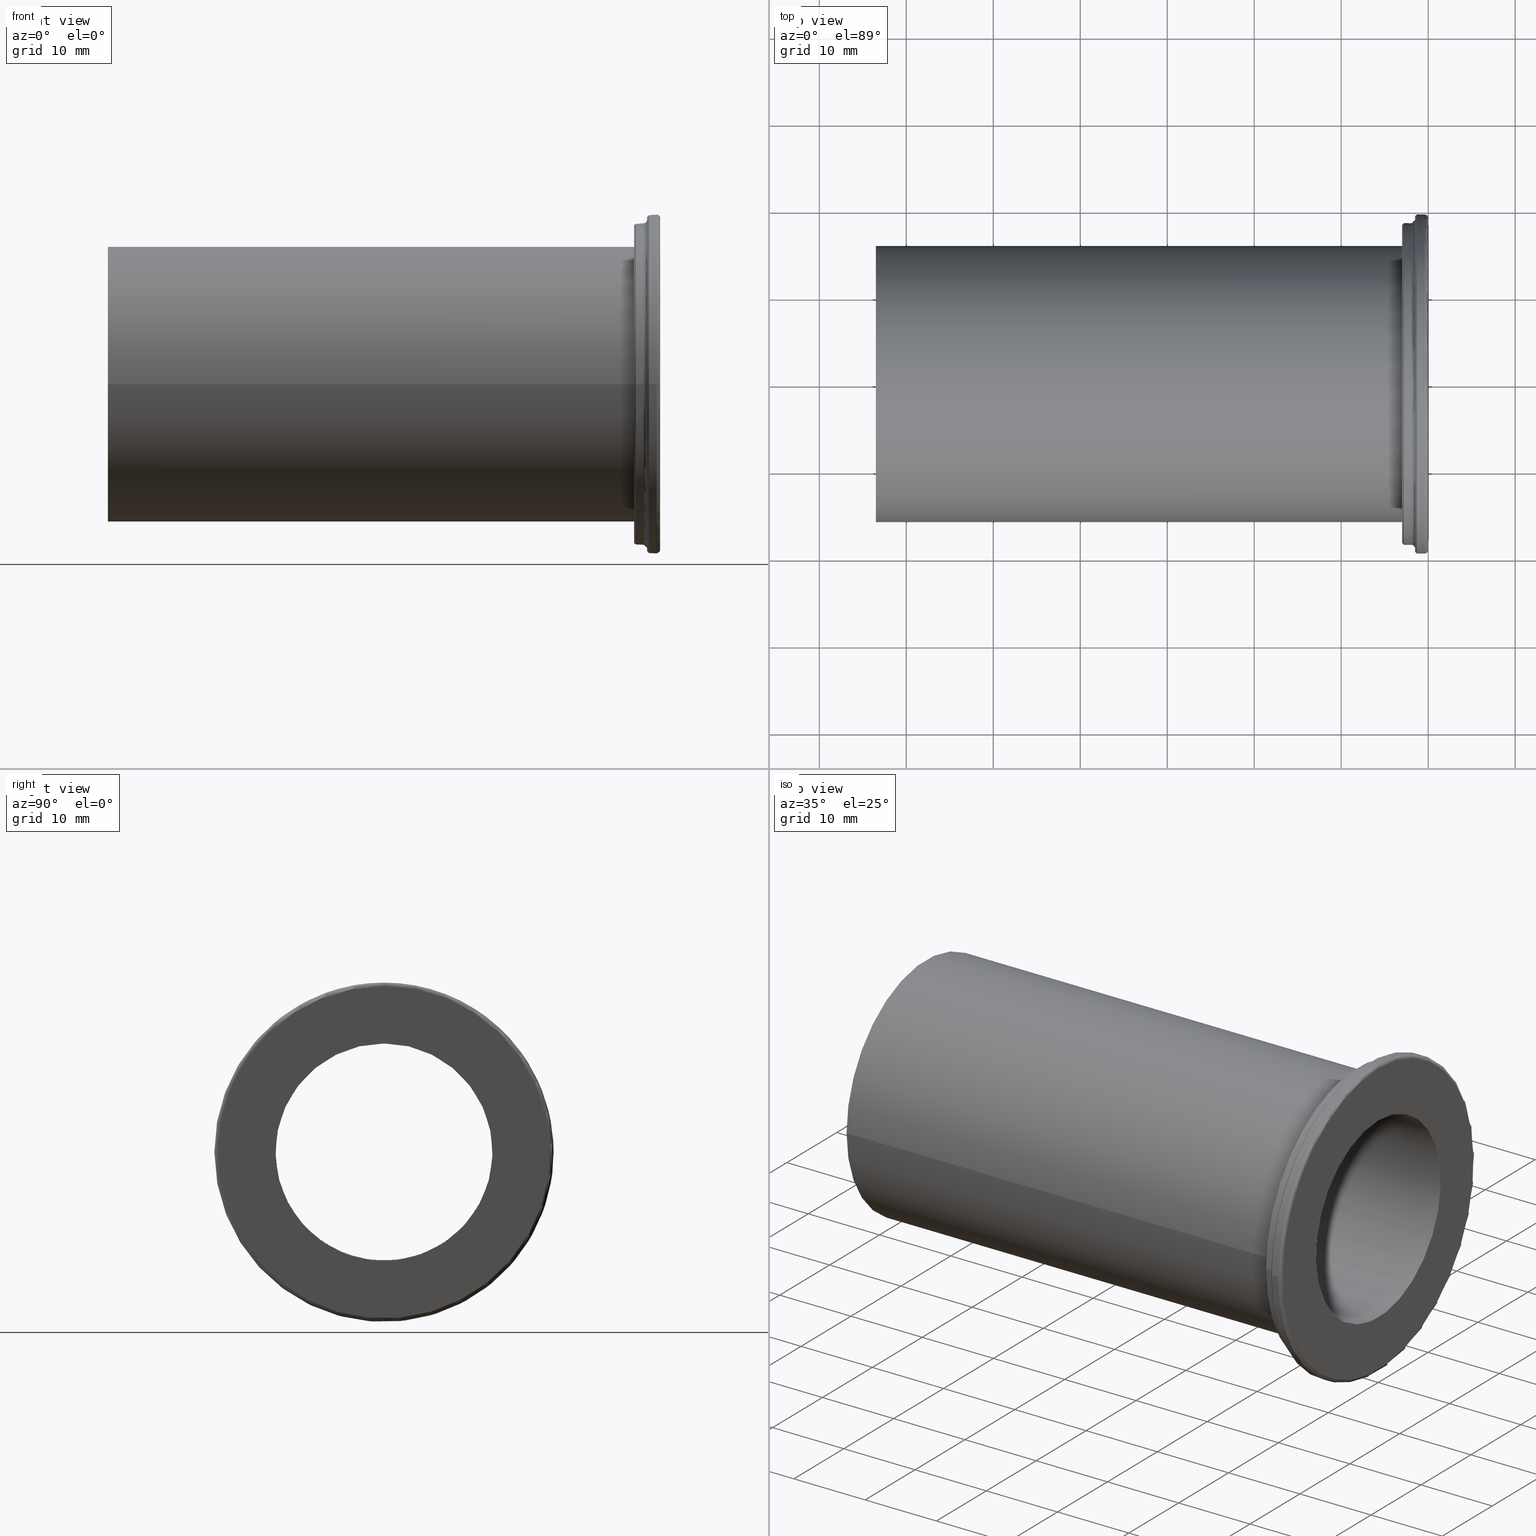
[diagram: canonical four-view strip — front | top / right | iso, engineering-drawing reading convention]
A machine part, canonical four-view strip (front | top / right | iso — engineering-drawing reading convention). The complete STEP part file that produces these views, byte-faithful:
ISO-10303-21;
HEADER;
/* Generated by software containing ST-Developer
 * from STEP Tools, Inc. (www.steptools.com) 
 */

FILE_DESCRIPTION(
/* description */ ('',
'CAx-IF Rec.Pracs.---Representation and Presentation of Product Manufa
cturing Information (PMI)---4.0---2014-10-13'),
/* implementation_level */ '2;1');

FILE_NAME(
/* name */ '103225.stp',
/* time_stamp */ '2025-05-12T15:31:30+09:00',
/* author */ ('eos'),
/* organization */ (''),
/* preprocessor_version */ 'ST-DEVELOPER v20',
/* originating_system */ 'Autodesk Inventor 2025',
/* authorisation */ '');

FILE_SCHEMA (('AP242_MANAGED_MODEL_BASED_3D_ENGINEERING_MIM_LF { 1 0 10303 442 1 1 4 }'));
ENDSEC;

DATA;
#10=CONSTRUCTIVE_GEOMETRY_REPRESENTATION_RELATIONSHIP('CGRR','None',#587,
#11);
#11=CONSTRUCTIVE_GEOMETRY_REPRESENTATION('Supplemental geometry',(#45,#46,
#47),#579);
#12=MECHANICAL_DESIGN_AND_DRAUGHTING_RELATIONSHIP('\X2\B4F1AC01D22CC601\X0\',
'',#27,#28);
#13=MECHANICAL_DESIGN_AND_DRAUGHTING_RELATIONSHIP('\X2\C815BA74\X0\','',
#29,#28);
#14=MECHANICAL_DESIGN_AND_DRAUGHTING_RELATIONSHIP('\X2\D3C9BA74\X0\','',
#30,#28);
#15=MECHANICAL_DESIGN_AND_DRAUGHTING_RELATIONSHIP('\X2\C6B0CE21BA74\X0\',
'',#31,#28);
#16=MAPPED_ITEM('',#21,#357);
#17=MAPPED_ITEM('',#22,#358);
#18=MAPPED_ITEM('',#23,#359);
#19=MAPPED_ITEM('',#24,#360);
#20=MAPPED_ITEM('',#25,#361);
#21=REPRESENTATION_MAP(#357,#26);
#22=REPRESENTATION_MAP(#358,#587);
#23=REPRESENTATION_MAP(#359,#26);
#24=REPRESENTATION_MAP(#360,#26);
#25=REPRESENTATION_MAP(#361,#26);
#26=ADVANCED_BREP_SHAPE_REPRESENTATION('\X2\B4F1AC01D22CC601\X0\',(#79),
#579);
#27=DRAUGHTING_MODEL('\X2\B4F1AC01D22CC601\X0\',(#16,#33),#579);
#28=DRAUGHTING_MODEL('',(#17,#358),#579);
#29=DRAUGHTING_MODEL('\X2\C815BA74\X0\',(#18,#34),#579);
#30=DRAUGHTING_MODEL('\X2\D3C9BA74\X0\',(#19,#35),#579);
#31=DRAUGHTING_MODEL('\X2\C6B0CE21BA74\X0\',(#20,#36),#579);
#32=MECHANICAL_DESIGN_GEOMETRIC_PRESENTATION_REPRESENTATION('',(#58,#59,
#60,#61,#62,#63,#64,#65,#66,#67,#68,#69,#70,#71,#72,#73,#74,#75,#76,#77),
#580);
#33=CAMERA_MODEL_D3('\X2\B4F1AC01D22CC601\X0\',#349,#37);
#34=CAMERA_MODEL_D3('\X2\C815BA74\X0\',#351,#38);
#35=CAMERA_MODEL_D3('\X2\D3C9BA74\X0\',#353,#39);
#36=CAMERA_MODEL_D3('\X2\C6B0CE21BA74\X0\',#355,#40);
#37=VIEW_VOLUME(.PARALLEL.,#562,16.9875424688562,0.,.F.,0.,.F.,.F.,#41);
#38=VIEW_VOLUME(.PARALLEL.,#565,117.693146607172,0.,.F.,0.,.F.,.F.,#42);
#39=VIEW_VOLUME(.PARALLEL.,#568,117.693146607172,0.,.F.,0.,.F.,.F.,#43);
#40=VIEW_VOLUME(.PARALLEL.,#571,117.693146607172,0.,.F.,0.,.F.,.F.,#44);
#41=PLANAR_BOX('view window',27.8110236220472,20.,#350);
#42=PLANAR_BOX('view window',27.8110236220472,20.,#352);
#43=PLANAR_BOX('view window',27.8110236220472,20.,#354);
#44=PLANAR_BOX('view window',27.8110236220472,20.,#356);
#45=GEOMETRIC_CURVE_SET('\X2\C2A4CF00CE58\X0\1',(#49,#50,#51,#52,#53,#54,
#55,#56,#57,#553));
#46=GEOMETRIC_CURVE_SET('\X2\C2A4CF00CE58\X0\5',(#162,#555,#556));
#47=GEOMETRIC_CURVE_SET('\X2\C2A4CF00CE58\X0\7',(#163,#558,#559));
#48=INVISIBILITY((#59,#60,#61,#62,#63,#64,#65,#66,#67,#68,#69,#70,#71,#72,
#73,#74,#75,#76,#77));
#49=POLYLINE('',(#535,#536));
#50=POLYLINE('',(#537,#538));
#51=POLYLINE('',(#539,#540));
#52=POLYLINE('',(#541,#542));
#53=POLYLINE('',(#543,#544));
#54=POLYLINE('',(#545,#546));
#55=POLYLINE('',(#547,#548));
#56=POLYLINE('',(#549,#550));
#57=POLYLINE('',(#551,#552));
#58=STYLED_ITEM('',(#596),#79);
#59=STYLED_ITEM('',(#597),#49);
#60=STYLED_ITEM('',(#597),#50);
#61=STYLED_ITEM('',(#598),#51);
#62=STYLED_ITEM('',(#597),#52);
#63=STYLED_ITEM('',(#597),#53);
#64=STYLED_ITEM('',(#597),#54);
#65=STYLED_ITEM('',(#597),#55);
#66=STYLED_ITEM('',(#597),#56);
#67=STYLED_ITEM('',(#597),#57);
#68=STYLED_ITEM('',(#599),#553);
#69=STYLED_ITEM('',(#598),#162);
#70=STYLED_ITEM('',(#600),#555);
#71=STYLED_ITEM('',(#601),#556);
#72=STYLED_ITEM('',(#598),#163);
#73=STYLED_ITEM('',(#602),#558);
#74=STYLED_ITEM('',(#603),#559);
#75=STYLED_ITEM('',(#604),#45);
#76=STYLED_ITEM('',(#605),#46);
#77=STYLED_ITEM('',(#606),#47);
#78=STYLED_ITEM('',(#607),#17);
#79=MANIFOLD_SOLID_BREP('\X2\C194B9ACB4DC\X0\1',#289);
#80=TOROIDAL_SURFACE('',#338,19.1,0.4);
#81=TOROIDAL_SURFACE('',#342,18.9,0.4);
#82=FACE_BOUND('',#113,.T.);
#83=FACE_BOUND('',#117,.T.);
#84=FACE_BOUND('',#120,.T.);
#85=FACE_BOUND('',#123,.T.);
#86=PLANE('',#327);
#87=PLANE('',#336);
#88=PLANE('',#341);
#89=PLANE('',#344);
#90=CONICAL_SURFACE('',#316,6.5,0.785398163397448);
#91=CONICAL_SURFACE('',#320,19.4,0.785398163397448);
#92=CONICAL_SURFACE('',#329,18.4,0.785398163397448);
#93=FACE_OUTER_BOUND('',#107,.T.);
#94=FACE_OUTER_BOUND('',#108,.T.);
#95=FACE_OUTER_BOUND('',#109,.T.);
#96=FACE_OUTER_BOUND('',#110,.T.);
#97=FACE_OUTER_BOUND('',#111,.T.);
#98=FACE_OUTER_BOUND('',#112,.T.);
#99=FACE_OUTER_BOUND('',#114,.T.);
#100=FACE_OUTER_BOUND('',#115,.T.);
#101=FACE_OUTER_BOUND('',#116,.T.);
#102=FACE_OUTER_BOUND('',#118,.T.);
#103=FACE_OUTER_BOUND('',#119,.T.);
#104=FACE_OUTER_BOUND('',#121,.T.);
#105=FACE_OUTER_BOUND('',#122,.T.);
#106=FACE_OUTER_BOUND('',#124,.T.);
#107=EDGE_LOOP('',(#212,#213,#214,#215,#216));
#108=EDGE_LOOP('',(#217,#218,#219,#220,#221));
#109=EDGE_LOOP('',(#222,#223,#224,#225));
#110=EDGE_LOOP('',(#226,#227,#228,#229,#230));
#111=EDGE_LOOP('',(#231,#232,#233,#234,#235,#236));
#112=EDGE_LOOP('',(#237));
#113=EDGE_LOOP('',(#238));
#114=EDGE_LOOP('',(#239,#240,#241,#242,#243));
#115=EDGE_LOOP('',(#244,#245,#246,#247,#248,#249));
#116=EDGE_LOOP('',(#250));
#117=EDGE_LOOP('',(#251));
#118=EDGE_LOOP('',(#252,#253,#254,#255,#256));
#119=EDGE_LOOP('',(#257));
#120=EDGE_LOOP('',(#258));
#121=EDGE_LOOP('',(#259,#260,#261,#262,#263));
#122=EDGE_LOOP('',(#264));
#123=EDGE_LOOP('',(#265));
#124=EDGE_LOOP('',(#266,#267,#268,#269));
#125=LINE('',#477,#133);
#126=LINE('',#484,#134);
#127=LINE('',#488,#135);
#128=LINE('',#495,#136);
#129=LINE('',#501,#137);
#130=LINE('',#512,#138);
#131=LINE('',#518,#139);
#132=LINE('',#534,#140);
#133=VECTOR('',#368,12.5);
#134=VECTOR('',#377,6.5);
#135=VECTOR('',#382,13.);
#136=VECTOR('',#389,19.4);
#137=VECTOR('',#396,19.5);
#138=VECTOR('',#409,18.4);
#139=VECTOR('',#416,18.5);
#140=VECTOR('',#441,15.875);
#141=CIRCLE('',#313,12.5);
#142=CIRCLE('',#314,12.5);
#143=CIRCLE('',#315,12.5);
#144=CIRCLE('',#317,13.);
#145=CIRCLE('',#319,13.);
#146=CIRCLE('',#321,19.5);
#147=CIRCLE('',#322,19.5);
#148=CIRCLE('',#323,19.3);
#149=CIRCLE('',#325,19.5);
#150=CIRCLE('',#326,19.5);
#151=CIRCLE('',#328,18.9);
#152=CIRCLE('',#330,18.5);
#153=CIRCLE('',#331,18.5);
#154=CIRCLE('',#332,18.3);
#155=CIRCLE('',#334,18.5);
#156=CIRCLE('',#335,18.5);
#157=CIRCLE('',#337,15.875);
#158=CIRCLE('',#339,19.1);
#159=CIRCLE('',#340,0.4);
#160=CIRCLE('',#343,0.4);
#161=CIRCLE('',#345,15.875);
#162=CIRCLE('',#347,15.875);
#163=CIRCLE('',#348,19.1);
#164=VERTEX_POINT('',#474);
#165=VERTEX_POINT('',#476);
#166=VERTEX_POINT('',#478);
#167=VERTEX_POINT('',#482);
#168=VERTEX_POINT('',#486);
#169=VERTEX_POINT('',#490);
#170=VERTEX_POINT('',#491);
#171=VERTEX_POINT('',#494);
#172=VERTEX_POINT('',#498);
#173=VERTEX_POINT('',#499);
#174=VERTEX_POINT('',#504);
#175=VERTEX_POINT('',#507);
#176=VERTEX_POINT('',#508);
#177=VERTEX_POINT('',#511);
#178=VERTEX_POINT('',#515);
#179=VERTEX_POINT('',#516);
#180=VERTEX_POINT('',#521);
#181=VERTEX_POINT('',#524);
#182=VERTEX_POINT('',#531);
#183=EDGE_CURVE('',#164,#164,#141,.T.);
#184=EDGE_CURVE('',#164,#165,#125,.T.);
#185=EDGE_CURVE('',#166,#165,#142,.T.);
#186=EDGE_CURVE('',#165,#166,#143,.T.);
#187=EDGE_CURVE('',#167,#167,#144,.T.);
#188=EDGE_CURVE('',#167,#166,#126,.T.);
#189=EDGE_CURVE('',#168,#168,#145,.T.);
#190=EDGE_CURVE('',#168,#167,#127,.T.);
#191=EDGE_CURVE('',#169,#170,#146,.T.);
#192=EDGE_CURVE('',#170,#169,#147,.T.);
#193=EDGE_CURVE('',#169,#171,#128,.T.);
#194=EDGE_CURVE('',#171,#171,#148,.T.);
#195=EDGE_CURVE('',#172,#173,#149,.T.);
#196=EDGE_CURVE('',#172,#170,#129,.T.);
#197=EDGE_CURVE('',#173,#172,#150,.T.);
#198=EDGE_CURVE('',#174,#174,#151,.T.);
#199=EDGE_CURVE('',#175,#176,#152,.T.);
#200=EDGE_CURVE('',#176,#175,#153,.T.);
#201=EDGE_CURVE('',#175,#177,#130,.T.);
#202=EDGE_CURVE('',#177,#177,#154,.T.);
#203=EDGE_CURVE('',#178,#179,#155,.T.);
#204=EDGE_CURVE('',#178,#176,#131,.T.);
#205=EDGE_CURVE('',#179,#178,#156,.T.);
#206=EDGE_CURVE('',#180,#180,#157,.T.);
#207=EDGE_CURVE('',#181,#181,#158,.T.);
#208=EDGE_CURVE('',#181,#173,#159,.T.);
#209=EDGE_CURVE('',#179,#174,#160,.T.);
#210=EDGE_CURVE('',#182,#182,#161,.T.);
#211=EDGE_CURVE('',#180,#182,#132,.T.);
#212=ORIENTED_EDGE('',*,*,#183,.F.);
#213=ORIENTED_EDGE('',*,*,#184,.T.);
#214=ORIENTED_EDGE('',*,*,#185,.F.);
#215=ORIENTED_EDGE('',*,*,#186,.F.);
#216=ORIENTED_EDGE('',*,*,#184,.F.);
#217=ORIENTED_EDGE('',*,*,#187,.T.);
#218=ORIENTED_EDGE('',*,*,#188,.T.);
#219=ORIENTED_EDGE('',*,*,#185,.T.);
#220=ORIENTED_EDGE('',*,*,#186,.T.);
#221=ORIENTED_EDGE('',*,*,#188,.F.);
#222=ORIENTED_EDGE('',*,*,#189,.F.);
#223=ORIENTED_EDGE('',*,*,#190,.T.);
#224=ORIENTED_EDGE('',*,*,#187,.F.);
#225=ORIENTED_EDGE('',*,*,#190,.F.);
#226=ORIENTED_EDGE('',*,*,#191,.T.);
#227=ORIENTED_EDGE('',*,*,#192,.T.);
#228=ORIENTED_EDGE('',*,*,#193,.T.);
#229=ORIENTED_EDGE('',*,*,#194,.T.);
#230=ORIENTED_EDGE('',*,*,#193,.F.);
#231=ORIENTED_EDGE('',*,*,#195,.F.);
#232=ORIENTED_EDGE('',*,*,#196,.T.);
#233=ORIENTED_EDGE('',*,*,#191,.F.);
#234=ORIENTED_EDGE('',*,*,#192,.F.);
#235=ORIENTED_EDGE('',*,*,#196,.F.);
#236=ORIENTED_EDGE('',*,*,#197,.F.);
#237=ORIENTED_EDGE('',*,*,#194,.F.);
#238=ORIENTED_EDGE('',*,*,#198,.F.);
#239=ORIENTED_EDGE('',*,*,#199,.T.);
#240=ORIENTED_EDGE('',*,*,#200,.T.);
#241=ORIENTED_EDGE('',*,*,#201,.T.);
#242=ORIENTED_EDGE('',*,*,#202,.T.);
#243=ORIENTED_EDGE('',*,*,#201,.F.);
#244=ORIENTED_EDGE('',*,*,#203,.F.);
#245=ORIENTED_EDGE('',*,*,#204,.T.);
#246=ORIENTED_EDGE('',*,*,#199,.F.);
#247=ORIENTED_EDGE('',*,*,#200,.F.);
#248=ORIENTED_EDGE('',*,*,#204,.F.);
#249=ORIENTED_EDGE('',*,*,#205,.F.);
#250=ORIENTED_EDGE('',*,*,#202,.F.);
#251=ORIENTED_EDGE('',*,*,#206,.T.);
#252=ORIENTED_EDGE('',*,*,#207,.T.);
#253=ORIENTED_EDGE('',*,*,#208,.T.);
#254=ORIENTED_EDGE('',*,*,#197,.T.);
#255=ORIENTED_EDGE('',*,*,#195,.T.);
#256=ORIENTED_EDGE('',*,*,#208,.F.);
#257=ORIENTED_EDGE('',*,*,#207,.F.);
#258=ORIENTED_EDGE('',*,*,#183,.T.);
#259=ORIENTED_EDGE('',*,*,#203,.T.);
#260=ORIENTED_EDGE('',*,*,#209,.T.);
#261=ORIENTED_EDGE('',*,*,#198,.T.);
#262=ORIENTED_EDGE('',*,*,#209,.F.);
#263=ORIENTED_EDGE('',*,*,#205,.T.);
#264=ORIENTED_EDGE('',*,*,#210,.F.);
#265=ORIENTED_EDGE('',*,*,#189,.T.);
#266=ORIENTED_EDGE('',*,*,#206,.F.);
#267=ORIENTED_EDGE('',*,*,#211,.T.);
#268=ORIENTED_EDGE('',*,*,#210,.T.);
#269=ORIENTED_EDGE('',*,*,#211,.F.);
#270=CYLINDRICAL_SURFACE('',#312,12.5);
#271=CYLINDRICAL_SURFACE('',#318,13.);
#272=CYLINDRICAL_SURFACE('',#324,19.5);
#273=CYLINDRICAL_SURFACE('',#333,18.5);
#274=CYLINDRICAL_SURFACE('',#346,15.875);
#275=ADVANCED_FACE('',(#93),#270,.F.);
#276=ADVANCED_FACE('',(#94),#90,.F.);
#277=ADVANCED_FACE('',(#95),#271,.F.);
#278=ADVANCED_FACE('',(#96),#91,.T.);
#279=ADVANCED_FACE('',(#97),#272,.T.);
#280=ADVANCED_FACE('',(#98,#82),#86,.T.);
#281=ADVANCED_FACE('',(#99),#92,.T.);
#282=ADVANCED_FACE('',(#100),#273,.T.);
#283=ADVANCED_FACE('',(#101,#83),#87,.T.);
#284=ADVANCED_FACE('',(#102),#80,.T.);
#285=ADVANCED_FACE('',(#103,#84),#88,.T.);
#286=ADVANCED_FACE('',(#104),#81,.F.);
#287=ADVANCED_FACE('',(#105,#85),#89,.T.);
#288=ADVANCED_FACE('',(#106),#274,.T.);
#289=CLOSED_SHELL('',(#275,#276,#277,#278,#279,#280,#281,#282,#283,#284,
#285,#286,#287,#288));
#290=DERIVED_UNIT_ELEMENT(#293,1.);
#291=DERIVED_UNIT_ELEMENT(#582,-3.);
#292=DIMENSIONAL_EXPONENTS(0.,1.,0.,0.,0.,0.,0.);
#293=(
CONVERSION_BASED_UNIT('gram',#295)
MASS_UNIT()
NAMED_UNIT(#292)
);
#294=(
MASS_UNIT()
NAMED_UNIT(*)
SI_UNIT(.KILO.,.GRAM.)
);
#295=MASS_MEASURE_WITH_UNIT(MASS_MEASURE(0.001),#294);
#296=DERIVED_UNIT((#290,#291));
#297=MEASURE_REPRESENTATION_ITEM('density measure',
POSITIVE_RATIO_MEASURE(7.85),#296);
#298=PROPERTY_DEFINITION_REPRESENTATION(#303,#300);
#299=PROPERTY_DEFINITION_REPRESENTATION(#304,#301);
#300=REPRESENTATION('material name',(#302),#579);
#301=REPRESENTATION('density',(#297),#579);
#302=DESCRIPTIVE_REPRESENTATION_ITEM('SUJ2','SUJ2');
#303=PROPERTY_DEFINITION('material property','material name',#589);
#304=PROPERTY_DEFINITION('material property','density of part',#589);
#305=DATE_TIME_ROLE('creation_date');
#306=APPLIED_DATE_AND_TIME_ASSIGNMENT(#307,#305,(#589));
#307=DATE_AND_TIME(#308,#309);
#308=CALENDAR_DATE(2020,6,7);
#309=LOCAL_TIME(0,0,0.,#310);
#310=COORDINATED_UNIVERSAL_TIME_OFFSET(0,0,.BEHIND.);
#311=AXIS2_PLACEMENT_3D('',#472,#362,#363);
#312=AXIS2_PLACEMENT_3D('',#473,#364,#365);
#313=AXIS2_PLACEMENT_3D('',#475,#366,#367);
#314=AXIS2_PLACEMENT_3D('',#479,#369,#370);
#315=AXIS2_PLACEMENT_3D('',#480,#371,#372);
#316=AXIS2_PLACEMENT_3D('',#481,#373,#374);
#317=AXIS2_PLACEMENT_3D('',#483,#375,#376);
#318=AXIS2_PLACEMENT_3D('',#485,#378,#379);
#319=AXIS2_PLACEMENT_3D('',#487,#380,#381);
#320=AXIS2_PLACEMENT_3D('',#489,#383,#384);
#321=AXIS2_PLACEMENT_3D('',#492,#385,#386);
#322=AXIS2_PLACEMENT_3D('',#493,#387,#388);
#323=AXIS2_PLACEMENT_3D('',#496,#390,#391);
#324=AXIS2_PLACEMENT_3D('',#497,#392,#393);
#325=AXIS2_PLACEMENT_3D('',#500,#394,#395);
#326=AXIS2_PLACEMENT_3D('',#502,#397,#398);
#327=AXIS2_PLACEMENT_3D('',#503,#399,#400);
#328=AXIS2_PLACEMENT_3D('',#505,#401,#402);
#329=AXIS2_PLACEMENT_3D('',#506,#403,#404);
#330=AXIS2_PLACEMENT_3D('',#509,#405,#406);
#331=AXIS2_PLACEMENT_3D('',#510,#407,#408);
#332=AXIS2_PLACEMENT_3D('',#513,#410,#411);
#333=AXIS2_PLACEMENT_3D('',#514,#412,#413);
#334=AXIS2_PLACEMENT_3D('',#517,#414,#415);
#335=AXIS2_PLACEMENT_3D('',#519,#417,#418);
#336=AXIS2_PLACEMENT_3D('',#520,#419,#420);
#337=AXIS2_PLACEMENT_3D('',#522,#421,#422);
#338=AXIS2_PLACEMENT_3D('',#523,#423,#424);
#339=AXIS2_PLACEMENT_3D('',#525,#425,#426);
#340=AXIS2_PLACEMENT_3D('',#526,#427,#428);
#341=AXIS2_PLACEMENT_3D('',#527,#429,#430);
#342=AXIS2_PLACEMENT_3D('',#528,#431,#432);
#343=AXIS2_PLACEMENT_3D('',#529,#433,#434);
#344=AXIS2_PLACEMENT_3D('',#530,#435,#436);
#345=AXIS2_PLACEMENT_3D('',#532,#437,#438);
#346=AXIS2_PLACEMENT_3D('',#533,#439,#440);
#347=AXIS2_PLACEMENT_3D('',#554,#442,#443);
#348=AXIS2_PLACEMENT_3D('',#557,#444,#445);
#349=AXIS2_PLACEMENT_3D('view reference',#560,#446,#447);
#350=AXIS2_PLACEMENT_3D('view window',#561,#448,#449);
#351=AXIS2_PLACEMENT_3D('view reference',#563,#450,#451);
#352=AXIS2_PLACEMENT_3D('view window',#564,#452,#453);
#353=AXIS2_PLACEMENT_3D('view reference',#566,#454,#455);
#354=AXIS2_PLACEMENT_3D('view window',#567,#456,#457);
#355=AXIS2_PLACEMENT_3D('view reference',#569,#458,#459);
#356=AXIS2_PLACEMENT_3D('view window',#570,#460,#461);
#357=AXIS2_PLACEMENT_3D('',#572,#462,#463);
#358=AXIS2_PLACEMENT_3D('',#573,#464,#465);
#359=AXIS2_PLACEMENT_3D('',#574,#466,#467);
#360=AXIS2_PLACEMENT_3D('',#575,#468,#469);
#361=AXIS2_PLACEMENT_3D('',#576,#470,#471);
#362=DIRECTION('axis',(0.,0.,1.));
#363=DIRECTION('refdir',(1.,0.,0.));
#364=DIRECTION('center_axis',(1.,0.,0.));
#365=DIRECTION('ref_axis',(0.,0.,-1.));
#366=DIRECTION('center_axis',(-1.,0.,0.));
#367=DIRECTION('ref_axis',(0.,0.,-1.));
#368=DIRECTION('',(-1.,0.,0.));
#369=DIRECTION('center_axis',(1.,0.,0.));
#370=DIRECTION('ref_axis',(0.,0.,-1.));
#371=DIRECTION('center_axis',(1.,0.,0.));
#372=DIRECTION('ref_axis',(0.,0.,-1.));
#373=DIRECTION('center_axis',(-1.,0.,0.));
#374=DIRECTION('ref_axis',(0.,0.,1.));
#375=DIRECTION('center_axis',(-1.,0.,0.));
#376=DIRECTION('ref_axis',(0.,0.,1.));
#377=DIRECTION('',(0.707106781186548,8.65956056235493E-17,0.707106781186547));
#378=DIRECTION('center_axis',(-1.,0.,0.));
#379=DIRECTION('ref_axis',(0.,0.,1.));
#380=DIRECTION('center_axis',(1.,0.,0.));
#381=DIRECTION('ref_axis',(0.,0.,1.));
#382=DIRECTION('',(1.,0.,0.));
#383=DIRECTION('center_axis',(1.,0.,0.));
#384=DIRECTION('ref_axis',(0.,-1.,0.));
#385=DIRECTION('center_axis',(-1.,0.,0.));
#386=DIRECTION('ref_axis',(0.,-1.,0.));
#387=DIRECTION('center_axis',(-1.,0.,0.));
#388=DIRECTION('ref_axis',(0.,-1.,0.));
#389=DIRECTION('',(-0.707106781186548,-0.707106781186548,-8.65956056235493E-17));
#390=DIRECTION('center_axis',(1.,0.,0.));
#391=DIRECTION('ref_axis',(0.,-1.,0.));
#392=DIRECTION('center_axis',(1.,0.,0.));
#393=DIRECTION('ref_axis',(0.,1.,0.));
#394=DIRECTION('center_axis',(1.,0.,0.));
#395=DIRECTION('ref_axis',(0.,-1.,1.83697019872103E-16));
#396=DIRECTION('',(-1.,0.,0.));
#397=DIRECTION('center_axis',(1.,0.,0.));
#398=DIRECTION('ref_axis',(0.,-1.,1.83697019872103E-16));
#399=DIRECTION('center_axis',(-1.,0.,0.));
#400=DIRECTION('ref_axis',(0.,0.,1.));
#401=DIRECTION('center_axis',(-1.,0.,0.));
#402=DIRECTION('ref_axis',(0.,-1.,1.83697019872103E-16));
#403=DIRECTION('center_axis',(1.,0.,0.));
#404=DIRECTION('ref_axis',(0.,-1.,0.));
#405=DIRECTION('center_axis',(-1.,0.,0.));
#406=DIRECTION('ref_axis',(0.,-1.,0.));
#407=DIRECTION('center_axis',(-1.,0.,0.));
#408=DIRECTION('ref_axis',(0.,-1.,0.));
#409=DIRECTION('',(-0.707106781186547,-0.707106781186547,-8.65956056235493E-17));
#410=DIRECTION('center_axis',(1.,0.,0.));
#411=DIRECTION('ref_axis',(0.,-1.,0.));
#412=DIRECTION('center_axis',(1.,0.,0.));
#413=DIRECTION('ref_axis',(0.,1.,0.));
#414=DIRECTION('center_axis',(1.,0.,0.));
#415=DIRECTION('ref_axis',(0.,-1.,1.83697019872103E-16));
#416=DIRECTION('',(-1.,0.,0.));
#417=DIRECTION('center_axis',(1.,0.,0.));
#418=DIRECTION('ref_axis',(0.,-1.,1.83697019872103E-16));
#419=DIRECTION('center_axis',(-1.,0.,0.));
#420=DIRECTION('ref_axis',(0.,0.,1.));
#421=DIRECTION('center_axis',(1.,0.,0.));
#422=DIRECTION('ref_axis',(0.,0.,-1.));
#423=DIRECTION('center_axis',(1.,0.,0.));
#424=DIRECTION('ref_axis',(0.,0.,-1.));
#425=DIRECTION('center_axis',(-1.,0.,0.));
#426=DIRECTION('ref_axis',(0.,-1.,1.83697019872103E-16));
#427=DIRECTION('center_axis',(0.,-1.,-1.22464679914735E-16));
#428=DIRECTION('ref_axis',(0.,-1.22464679914735E-16,1.));
#429=DIRECTION('center_axis',(1.,0.,0.));
#430=DIRECTION('ref_axis',(0.,0.,-1.));
#431=DIRECTION('center_axis',(1.,0.,0.));
#432=DIRECTION('ref_axis',(0.,0.,-1.));
#433=DIRECTION('center_axis',(0.,-1.,-1.22464679914735E-16));
#434=DIRECTION('ref_axis',(0.,-1.22464679914735E-16,1.));
#435=DIRECTION('center_axis',(-1.,0.,0.));
#436=DIRECTION('ref_axis',(0.,0.,1.));
#437=DIRECTION('center_axis',(1.,0.,0.));
#438=DIRECTION('ref_axis',(0.,0.,-1.));
#439=DIRECTION('center_axis',(1.,0.,0.));
#440=DIRECTION('ref_axis',(0.,1.,0.));
#441=DIRECTION('',(-1.,0.,0.));
#442=DIRECTION('center_axis',(-1.,0.,0.));
#443=DIRECTION('ref_axis',(0.,0.,1.));
#444=DIRECTION('center_axis',(1.,0.,0.));
#445=DIRECTION('ref_axis',(0.,0.,-1.));
#446=DIRECTION('center_axis',(-0.577350269189626,0.577350269189626,-0.577350269189626));
#447=DIRECTION('ref_axis',(-0.707106781186548,-0.707106781186548,0.));
#448=DIRECTION('center_axis',(0.,0.,1.));
#449=DIRECTION('ref_axis',(1.,0.,0.));
#450=DIRECTION('center_axis',(-2.22044604925031E-16,0.,-1.));
#451=DIRECTION('ref_axis',(-1.,0.,2.22044604925031E-16));
#452=DIRECTION('center_axis',(0.,0.,1.));
#453=DIRECTION('ref_axis',(1.,0.,0.));
#454=DIRECTION('center_axis',(0.,-1.,0.));
#455=DIRECTION('ref_axis',(-1.,0.,0.));
#456=DIRECTION('center_axis',(0.,0.,1.));
#457=DIRECTION('ref_axis',(1.,0.,0.));
#458=DIRECTION('center_axis',(-1.,0.,0.));
#459=DIRECTION('ref_axis',(0.,0.,1.));
#460=DIRECTION('center_axis',(0.,0.,1.));
#461=DIRECTION('ref_axis',(1.,0.,0.));
#462=DIRECTION('center_axis',(0.,0.,1.));
#463=DIRECTION('ref_axis',(1.,0.,0.));
#464=DIRECTION('center_axis',(0.,0.,1.));
#465=DIRECTION('ref_axis',(1.,0.,0.));
#466=DIRECTION('center_axis',(0.,0.,1.));
#467=DIRECTION('ref_axis',(1.,0.,0.));
#468=DIRECTION('center_axis',(0.,0.,1.));
#469=DIRECTION('ref_axis',(1.,0.,0.));
#470=DIRECTION('center_axis',(0.,0.,1.));
#471=DIRECTION('ref_axis',(1.,0.,0.));
#472=CARTESIAN_POINT('',(0.,0.,0.));
#473=CARTESIAN_POINT('Origin',(-84.1085608009078,0.,0.));
#474=CARTESIAN_POINT('',(0.,-1.53080849893419E-15,12.5));
#475=CARTESIAN_POINT('Origin',(0.,0.,0.));
#476=CARTESIAN_POINT('',(-47.,-1.53080849893419E-15,12.5));
#477=CARTESIAN_POINT('',(-84.1085608009078,-1.53080849893419E-15,12.5));
#478=CARTESIAN_POINT('',(-47.,-1.53080849893419E-15,-12.5));
#479=CARTESIAN_POINT('Origin',(-47.,0.,0.));
#480=CARTESIAN_POINT('Origin',(-47.,0.,0.));
#481=CARTESIAN_POINT('Origin',(-41.,0.,0.));
#482=CARTESIAN_POINT('',(-47.5,-1.59204083889156E-15,-13.));
#483=CARTESIAN_POINT('Origin',(-47.5,0.,0.));
#484=CARTESIAN_POINT('',(-41.,-7.9602041944578E-16,-6.5));
#485=CARTESIAN_POINT('Origin',(-55.5,0.,0.));
#486=CARTESIAN_POINT('',(-63.5,-1.59204083889156E-15,-13.));
#487=CARTESIAN_POINT('Origin',(-63.5,0.,0.));
#488=CARTESIAN_POINT('',(-55.5,-1.59204083889156E-15,-13.));
#489=CARTESIAN_POINT('Origin',(-1.4,0.,0.));
#490=CARTESIAN_POINT('',(-1.3,19.5,-2.38806125833734E-15));
#491=CARTESIAN_POINT('',(-1.3,-19.5,-2.38806125833734E-15));
#492=CARTESIAN_POINT('Origin',(-1.3,0.,0.));
#493=CARTESIAN_POINT('Origin',(-1.3,0.,0.));
#494=CARTESIAN_POINT('',(-1.5,19.3,2.36356832235439E-15));
#495=CARTESIAN_POINT('',(-1.4,19.4,2.37581479034587E-15));
#496=CARTESIAN_POINT('Origin',(-1.5,0.,0.));
#497=CARTESIAN_POINT('Origin',(-0.75,0.,0.));
#498=CARTESIAN_POINT('',(-0.399999999999996,-19.5,-2.38806125833734E-15));
#499=CARTESIAN_POINT('',(-0.399999999999996,-2.38806125833734E-15,19.5));
#500=CARTESIAN_POINT('Origin',(-0.399999999999996,0.,0.));
#501=CARTESIAN_POINT('',(-0.75,-19.5,-2.38806125833734E-15));
#502=CARTESIAN_POINT('Origin',(-0.399999999999996,0.,0.));
#503=CARTESIAN_POINT('Origin',(-1.5,19.5,0.));
#504=CARTESIAN_POINT('',(-1.5,-2.3145824503885E-15,18.9));
#505=CARTESIAN_POINT('Origin',(-1.5,0.,0.));
#506=CARTESIAN_POINT('Origin',(-2.9,0.,0.));
#507=CARTESIAN_POINT('',(-2.8,18.5,-2.2655965784226E-15));
#508=CARTESIAN_POINT('',(-2.8,-18.5,-2.2655965784226E-15));
#509=CARTESIAN_POINT('Origin',(-2.8,0.,0.));
#510=CARTESIAN_POINT('Origin',(-2.8,0.,0.));
#511=CARTESIAN_POINT('',(-3.,18.3,2.24110364243966E-15));
#512=CARTESIAN_POINT('',(-2.9,18.4,2.25335011043113E-15));
#513=CARTESIAN_POINT('Origin',(-3.,0.,0.));
#514=CARTESIAN_POINT('Origin',(-2.25,0.,0.));
#515=CARTESIAN_POINT('',(-1.9,-18.5,-2.2655965784226E-15));
#516=CARTESIAN_POINT('',(-1.9,-2.2655965784226E-15,18.5));
#517=CARTESIAN_POINT('Origin',(-1.9,0.,0.));
#518=CARTESIAN_POINT('',(-2.25,-18.5,-2.2655965784226E-15));
#519=CARTESIAN_POINT('Origin',(-1.9,0.,0.));
#520=CARTESIAN_POINT('Origin',(-3.,18.5,0.));
#521=CARTESIAN_POINT('',(-2.99999999999997,-15.875,-1.94412679364642E-15));
#522=CARTESIAN_POINT('Origin',(-2.99999999999997,0.,0.));
#523=CARTESIAN_POINT('Origin',(-0.399999999999996,0.,0.));
#524=CARTESIAN_POINT('',(4.44089209850063E-15,-2.33907538637144E-15,19.1));
#525=CARTESIAN_POINT('Origin',(4.44089209850063E-15,0.,0.));
#526=CARTESIAN_POINT('Origin',(-0.399999999999996,-2.33907538637144E-15,
19.1));
#527=CARTESIAN_POINT('Origin',(4.44089209850063E-15,0.,0.));
#528=CARTESIAN_POINT('Origin',(-1.9,0.,0.));
#529=CARTESIAN_POINT('Origin',(-1.9,-2.3145824503885E-15,18.9));
#530=CARTESIAN_POINT('Origin',(-63.5,15.875,0.));
#531=CARTESIAN_POINT('',(-63.5,-15.875,-1.94412679364642E-15));
#532=CARTESIAN_POINT('Origin',(-63.5,0.,0.));
#533=CARTESIAN_POINT('Origin',(-33.25,0.,0.));
#534=CARTESIAN_POINT('',(-33.25,-15.875,-1.94412679364642E-15));
#535=CARTESIAN_POINT('polyline point',(-63.5,0.,0.));
#536=CARTESIAN_POINT('polyline point',(-63.5,15.875,0.));
#537=CARTESIAN_POINT('polyline point',(-63.5,15.875,0.));
#538=CARTESIAN_POINT('polyline point',(-2.99999999999997,15.875,0.));
#539=CARTESIAN_POINT('polyline point',(0.,-3.9,0.));
#540=CARTESIAN_POINT('polyline point',(0.,23.4,0.));
#541=CARTESIAN_POINT('polyline point',(4.44089209850063E-15,0.,0.));
#542=CARTESIAN_POINT('polyline point',(0.,19.5,0.));
#543=CARTESIAN_POINT('polyline point',(0.,19.5,0.));
#544=CARTESIAN_POINT('polyline point',(-1.5,19.5,0.));
#545=CARTESIAN_POINT('polyline point',(-1.5,19.5,0.));
#546=CARTESIAN_POINT('polyline point',(-1.5,18.5,0.));
#547=CARTESIAN_POINT('polyline point',(-1.5,18.5,0.));
#548=CARTESIAN_POINT('polyline point',(-3.,18.5,0.));
#549=CARTESIAN_POINT('polyline point',(-3.,18.5,0.));
#550=CARTESIAN_POINT('polyline point',(-2.99999999999997,15.875,0.));
#551=CARTESIAN_POINT('polyline point',(-63.5,0.,0.));
#552=CARTESIAN_POINT('polyline point',(4.44089209850063E-15,0.,0.));
#553=CARTESIAN_POINT('',(0.,19.5,0.));
#554=CARTESIAN_POINT('Origin',(-63.5,0.,0.));
#555=CARTESIAN_POINT('',(-63.5,0.,0.));
#556=CARTESIAN_POINT('',(-63.5,0.,0.));
#557=CARTESIAN_POINT('Origin',(4.44089209850063E-15,0.,0.));
#558=CARTESIAN_POINT('',(4.44089209850063E-15,0.,0.));
#559=CARTESIAN_POINT('',(4.44089209850063E-15,0.,0.));
#560=CARTESIAN_POINT('Origin',(9.80776221726431,-9.80776221726431,9.80776221726431));
#561=CARTESIAN_POINT('Origin',(-13.9055118110236,-10.,16.9875424688562));
#562=CARTESIAN_POINT('',(0.,0.,0.));
#563=CARTESIAN_POINT('Origin',(2.61331282407732E-14,0.,117.693146607172));
#564=CARTESIAN_POINT('Origin',(-13.9055118110236,-10.,117.693146607172));
#565=CARTESIAN_POINT('',(0.,0.,0.));
#566=CARTESIAN_POINT('Origin',(0.,117.693146607172,0.));
#567=CARTESIAN_POINT('Origin',(-13.9055118110236,-10.,117.693146607172));
#568=CARTESIAN_POINT('',(0.,0.,0.));
#569=CARTESIAN_POINT('Origin',(117.693146607172,0.,0.));
#570=CARTESIAN_POINT('Origin',(-13.9055118110236,-10.,117.693146607172));
#571=CARTESIAN_POINT('',(0.,0.,0.));
#572=CARTESIAN_POINT('Origin',(0.,0.,0.));
#573=CARTESIAN_POINT('Origin',(0.,0.,0.));
#574=CARTESIAN_POINT('Origin',(0.,0.,0.));
#575=CARTESIAN_POINT('Origin',(0.,0.,0.));
#576=CARTESIAN_POINT('Origin',(0.,0.,0.));
#577=UNCERTAINTY_MEASURE_WITH_UNIT(LENGTH_MEASURE(0.01),#581,
'DISTANCE_ACCURACY_VALUE',
'Maximum model space distance between geometric entities at asserted c
onnectivities');
#578=UNCERTAINTY_MEASURE_WITH_UNIT(LENGTH_MEASURE(0.01),#581,
'DISTANCE_ACCURACY_VALUE',
'Maximum model space distance between geometric entities at asserted c
onnectivities');
#579=(
GEOMETRIC_REPRESENTATION_CONTEXT(3)
GLOBAL_UNCERTAINTY_ASSIGNED_CONTEXT((#577))
GLOBAL_UNIT_ASSIGNED_CONTEXT((#581,#583,#584))
REPRESENTATION_CONTEXT('','3D')
);
#580=(
GEOMETRIC_REPRESENTATION_CONTEXT(3)
GLOBAL_UNCERTAINTY_ASSIGNED_CONTEXT((#578))
GLOBAL_UNIT_ASSIGNED_CONTEXT((#581,#583,#584))
REPRESENTATION_CONTEXT('','3D')
);
#581=(
LENGTH_UNIT()
NAMED_UNIT(*)
SI_UNIT(.MILLI.,.METRE.)
);
#582=(
LENGTH_UNIT()
NAMED_UNIT(*)
SI_UNIT(.CENTI.,.METRE.)
);
#583=(
NAMED_UNIT(*)
PLANE_ANGLE_UNIT()
SI_UNIT($,.RADIAN.)
);
#584=(
NAMED_UNIT(*)
SI_UNIT($,.STERADIAN.)
SOLID_ANGLE_UNIT()
);
#585=SHAPE_DEFINITION_REPRESENTATION(#586,#587);
#586=PRODUCT_DEFINITION_SHAPE('',$,#589);
#587=SHAPE_REPRESENTATION('',(#311,#79),#579);
#588=PRODUCT_DEFINITION_CONTEXT('part definition',#593,'design');
#589=PRODUCT_DEFINITION('HK25.4-12-SSK','LO-HK31.75-25',#590,#588);
#590=PRODUCT_DEFINITION_FORMATION('',$,#595);
#591=PRODUCT_RELATED_PRODUCT_CATEGORY('LO-HK31.75-25','LO-HK31.75-25',(#595));
#592=APPLICATION_PROTOCOL_DEFINITION('international standard',
'ap242_managed_model_based_3d_engineering',2011,#593);
#593=APPLICATION_CONTEXT('Managed model based 3d engineering');
#594=PRODUCT_CONTEXT('part definition',#593,'mechanical');
#595=PRODUCT('HK25.4-12-SSK','LO-HK31.75-25',$,(#594));
#596=PRESENTATION_STYLE_ASSIGNMENT((#608));
#597=PRESENTATION_STYLE_ASSIGNMENT((#609));
#598=PRESENTATION_STYLE_ASSIGNMENT((#610));
#599=PRESENTATION_STYLE_ASSIGNMENT((NULL_STYLE(.NULL.)));
#600=PRESENTATION_STYLE_ASSIGNMENT((NULL_STYLE(.NULL.)));
#601=PRESENTATION_STYLE_ASSIGNMENT((NULL_STYLE(.NULL.)));
#602=PRESENTATION_STYLE_ASSIGNMENT((NULL_STYLE(.NULL.)));
#603=PRESENTATION_STYLE_ASSIGNMENT((NULL_STYLE(.NULL.)));
#604=PRESENTATION_STYLE_ASSIGNMENT((NULL_STYLE(.NULL.)));
#605=PRESENTATION_STYLE_ASSIGNMENT((NULL_STYLE(.NULL.)));
#606=PRESENTATION_STYLE_ASSIGNMENT((NULL_STYLE(.NULL.)));
#607=PRESENTATION_STYLE_ASSIGNMENT((NULL_STYLE(.NULL.)));
#608=SURFACE_STYLE_USAGE(.BOTH.,#613);
#609=SURFACE_STYLE_USAGE(.BOTH.,#614);
#610=SURFACE_STYLE_USAGE(.BOTH.,#615);
#611=SURFACE_STYLE_RENDERING_WITH_PROPERTIES($,#625,(#612));
#612=SURFACE_STYLE_TRANSPARENT(0.480000019073486);
#613=SURFACE_SIDE_STYLE('',(#616,#611));
#614=SURFACE_SIDE_STYLE('',(#617));
#615=SURFACE_SIDE_STYLE('',(#618));
#616=SURFACE_STYLE_FILL_AREA(#619);
#617=SURFACE_STYLE_FILL_AREA(#620);
#618=SURFACE_STYLE_FILL_AREA(#621);
#619=FILL_AREA_STYLE('',(#622));
#620=FILL_AREA_STYLE('',(#623));
#621=FILL_AREA_STYLE('',(#624));
#622=FILL_AREA_STYLE_COLOUR('',#625);
#623=FILL_AREA_STYLE_COLOUR('',#626);
#624=FILL_AREA_STYLE_COLOUR('',#627);
#625=COLOUR_RGB('',0.0627450980392157,0.670588235294118,0.290196078431373);
#626=COLOUR_RGB('',1.,1.,1.);
#627=COLOUR_RGB('',0.913725490196078,0.913725490196078,0.);
ENDSEC;
END-ISO-10303-21;
